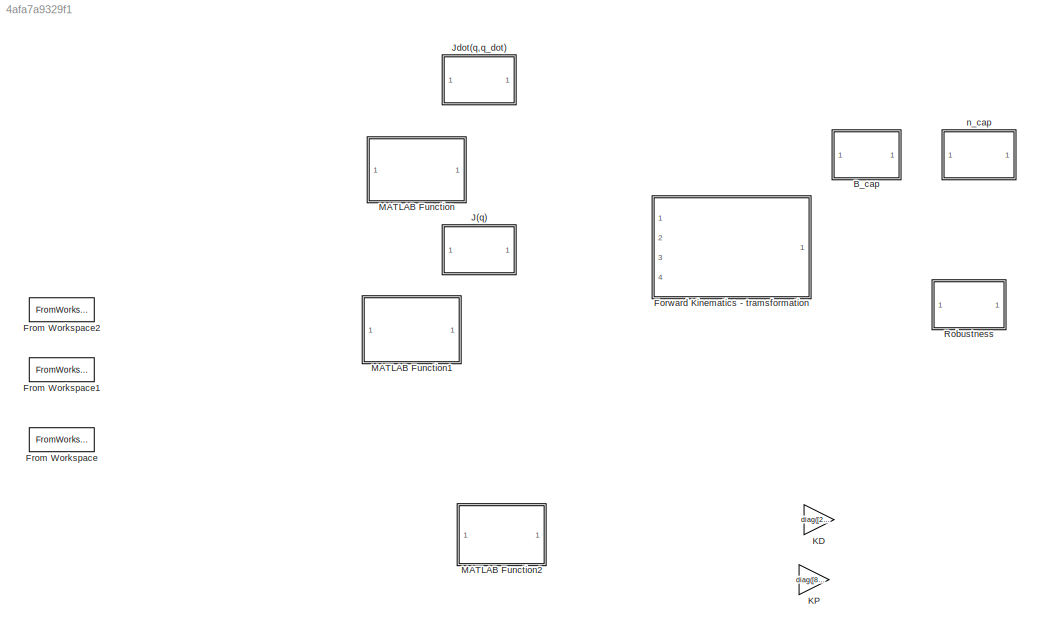
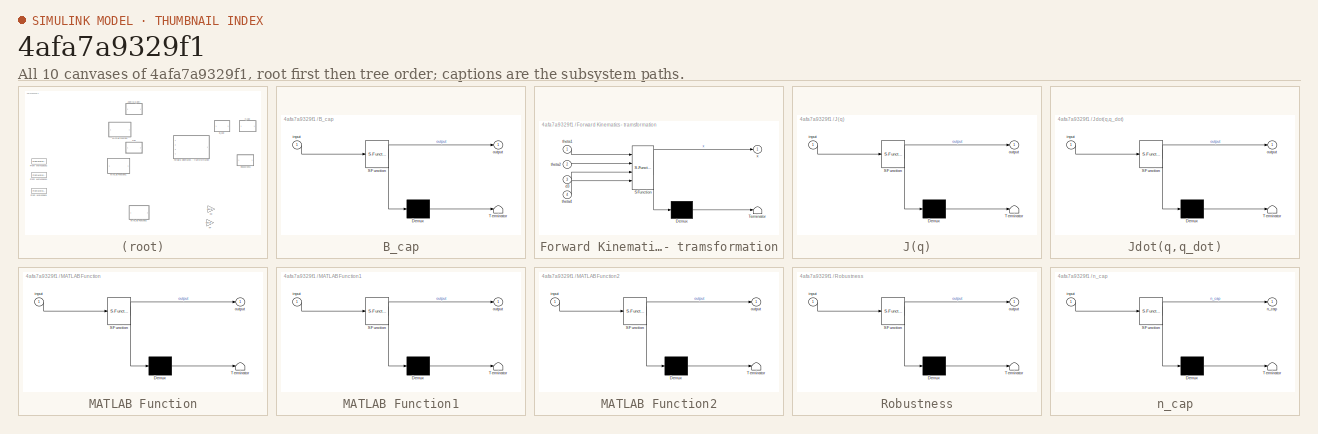
[diagram: thumbnail index - all 10 canvases of the model, root first then tree order]
MODEL slx_4afa7a9329f1
KIND model
CONFIG AbsTol = auto
CONFIG EnableMultiTasking = off
CONFIG FixedStep = auto
CONFIG MaxStep = auto
CONFIG MinStep = auto
CONFIG RelTol = 1e-3
CONFIG SampleTimeConstraint = Unconstrained
CONFIG Solver = VariableStepAuto
CONFIG SolverName = VariableStepAuto
CONFIG StartTime = 0.0
CONFIG StopTime = 10.0
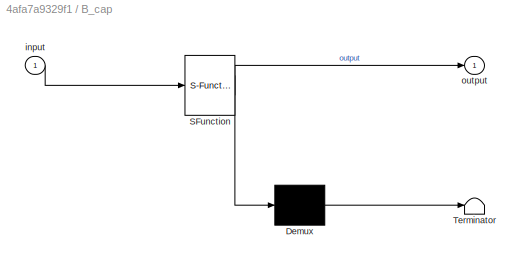
BLOCK [SubSystem] B_cap
  ErrorFcn = Stateflow.Translate.translate
  PermitHierarchicalResolution = ExplicitOnly
  Ports = [1, 1]
  RequestExecContextInheritance = off
  SFBlockType = MATLAB Function
  TreatAsAtomicUnit = on
BLOCK [Demux] B_cap/ Demux 
  Outputs = 1
  Ports = [1, 1]
BLOCK [S-Function] B_cap/ SFunction 
  EnableBusSupport = on
  FunctionName = sf_sfun
  PortCounts = [1 2]
  Ports = [1, 2]
  SFcnIsStateOwnerBlock = off
  SFunctionDeploymentMode = off
  Tag = Stateflow S-Function 7
BLOCK [Terminator] B_cap/ Terminator 
BLOCK [Inport] B_cap/input
  IconDisplay = Port number
BLOCK [Outport] B_cap/output
  IconDisplay = Port number
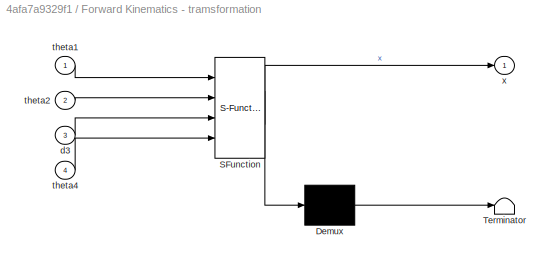
BLOCK [SubSystem] Forward Kinematics - tramsformation
  ErrorFcn = Stateflow.Translate.translate
  PermitHierarchicalResolution = ExplicitOnly
  Ports = [4, 1]
  RequestExecContextInheritance = off
  SFBlockType = MATLAB Function
  TreatAsAtomicUnit = on
BLOCK [Demux] Forward Kinematics - tramsformation/ Demux 
  Outputs = 1
  Ports = [1, 1]
BLOCK [S-Function] Forward Kinematics - tramsformation/ SFunction 
  EnableBusSupport = on
  FunctionName = sf_sfun
  PortCounts = [4 2]
  Ports = [4, 2]
  SFcnIsStateOwnerBlock = off
  SFunctionDeploymentMode = off
  Tag = Stateflow S-Function 2
BLOCK [Terminator] Forward Kinematics - tramsformation/ Terminator 
BLOCK [Inport] Forward Kinematics - tramsformation/d3
  IconDisplay = Port number
  Port = 3
BLOCK [Inport] Forward Kinematics - tramsformation/theta1
  IconDisplay = Port number
BLOCK [Inport] Forward Kinematics - tramsformation/theta2
  IconDisplay = Port number
  Port = 2
BLOCK [Inport] Forward Kinematics - tramsformation/theta4
  IconDisplay = Port number
  Port = 4
BLOCK [Outport] Forward Kinematics - tramsformation/x
  IconDisplay = Port number
BLOCK [FromWorkspace] From Workspace
  SampleTime = Tc
  VariableName = [t pd theta_d]
  ZeroCross = on
BLOCK [FromWorkspace] From Workspace1
  SampleTime = Tc
  VariableName = [t pd_dot theta_d_dot]
  ZeroCross = on
BLOCK [FromWorkspace] From Workspace2
  SampleTime = Tc
  VariableName = [t pd_dot_dot theta_d_dot_dot]
  ZeroCross = on
BLOCK [SubSystem] J(q)
  ErrorFcn = Stateflow.Translate.translate
  PermitHierarchicalResolution = ExplicitOnly
  Ports = [1, 1]
  RequestExecContextInheritance = off
  SFBlockType = MATLAB Function
  TreatAsAtomicUnit = on
BLOCK [Demux] J(q)/ Demux 
  Outputs = 1
  Ports = [1, 1]
BLOCK [S-Function] J(q)/ SFunction 
  EnableBusSupport = off
  FunctionName = sf_sfun
  PortCounts = [1 2]
  Ports = [1, 2]
  SFcnIsStateOwnerBlock = off
  SFunctionDeploymentMode = off
  Tag = Stateflow S-Function 5
BLOCK [Terminator] J(q)/ Terminator 
BLOCK [Inport] J(q)/input
  IconDisplay = Port number
BLOCK [Outport] J(q)/output
  IconDisplay = Port number
BLOCK [SubSystem] Jdot(q,q_dot)
  ErrorFcn = Stateflow.Translate.translate
  PermitHierarchicalResolution = ExplicitOnly
  Ports = [1, 1]
  RequestExecContextInheritance = off
  SFBlockType = MATLAB Function
  TreatAsAtomicUnit = on
BLOCK [Demux] Jdot(q,q_dot)/ Demux 
  Outputs = 1
  Ports = [1, 1]
BLOCK [S-Function] Jdot(q,q_dot)/ SFunction 
  EnableBusSupport = off
  FunctionName = sf_sfun
  PortCounts = [1 2]
  Ports = [1, 2]
  SFcnIsStateOwnerBlock = off
  SFunctionDeploymentMode = off
  Tag = Stateflow S-Function 4
BLOCK [Terminator] Jdot(q,q_dot)/ Terminator 
BLOCK [Inport] Jdot(q,q_dot)/input
  IconDisplay = Port number
BLOCK [Outport] Jdot(q,q_dot)/output
  IconDisplay = Port number
BLOCK [Gain] KD
  Gain = diag([250 250 1000 1000])
  Multiplication = Matrix(K*u) (u vector)
  OutDataTypeStr = Inherit: Inherit via internal rule
  ParamDataTypeStr = Inherit: Inherit via internal rule
  SaturateOnIntegerOverflow = off
BLOCK [Gain] KP
  Gain = diag([8000 8000 80000 80000])
  Multiplication = Matrix(K*u) (u vector)
  OutDataTypeStr = Inherit: Inherit via internal rule
  ParamDataTypeStr = Inherit: Inherit via internal rule
  SaturateOnIntegerOverflow = off
BLOCK [SubSystem] MATLAB Function
  ErrorFcn = Stateflow.Translate.translate
  PermitHierarchicalResolution = ExplicitOnly
  Ports = [1, 1]
  RequestExecContextInheritance = off
  SFBlockType = MATLAB Function
  TreatAsAtomicUnit = on
BLOCK [Demux] MATLAB Function/ Demux 
  Outputs = 1
  Ports = [1, 1]
BLOCK [S-Function] MATLAB Function/ SFunction 
  EnableBusSupport = on
  FunctionName = sf_sfun
  PortCounts = [1 2]
  Ports = [1, 2]
  SFcnIsStateOwnerBlock = off
  SFunctionDeploymentMode = off
  Tag = Stateflow S-Function 1
BLOCK [Terminator] MATLAB Function/ Terminator 
BLOCK [Inport] MATLAB Function/input
  IconDisplay = Port number
BLOCK [Outport] MATLAB Function/output
  IconDisplay = Port number
BLOCK [SubSystem] MATLAB Function1
  ErrorFcn = Stateflow.Translate.translate
  PermitHierarchicalResolution = ExplicitOnly
  Ports = [1, 1]
  RequestExecContextInheritance = off
  SFBlockType = MATLAB Function
  TreatAsAtomicUnit = on
BLOCK [Demux] MATLAB Function1/ Demux 
  Outputs = 1
  Ports = [1, 1]
BLOCK [S-Function] MATLAB Function1/ SFunction 
  EnableBusSupport = on
  FunctionName = sf_sfun
  PortCounts = [1 2]
  Ports = [1, 2]
  SFcnIsStateOwnerBlock = off
  SFunctionDeploymentMode = off
  Tag = Stateflow S-Function 3
BLOCK [Terminator] MATLAB Function1/ Terminator 
BLOCK [Inport] MATLAB Function1/input
  IconDisplay = Port number
BLOCK [Outport] MATLAB Function1/output
  IconDisplay = Port number
BLOCK [SubSystem] MATLAB Function2
  ErrorFcn = Stateflow.Translate.translate
  PermitHierarchicalResolution = ExplicitOnly
  Ports = [1, 1]
  RequestExecContextInheritance = off
  SFBlockType = MATLAB Function
  TreatAsAtomicUnit = on
BLOCK [Demux] MATLAB Function2/ Demux 
  Outputs = 1
  Ports = [1, 1]
BLOCK [S-Function] MATLAB Function2/ SFunction 
  EnableBusSupport = off
  FunctionName = sf_sfun
  PortCounts = [1 2]
  Ports = [1, 2]
  SFcnIsStateOwnerBlock = off
  SFunctionDeploymentMode = off
  Tag = Stateflow S-Function 6
BLOCK [Terminator] MATLAB Function2/ Terminator 
BLOCK [Inport] MATLAB Function2/input
  IconDisplay = Port number
BLOCK [Outport] MATLAB Function2/output
  IconDisplay = Port number
BLOCK [SubSystem] Robustness
  ErrorFcn = Stateflow.Translate.translate
  PermitHierarchicalResolution = ExplicitOnly
  Ports = [1, 1]
  RequestExecContextInheritance = off
  SFBlockType = MATLAB Function
  TreatAsAtomicUnit = on
BLOCK [Demux] Robustness/ Demux 
  Outputs = 1
  Ports = [1, 1]
BLOCK [S-Function] Robustness/ SFunction 
  EnableBusSupport = on
  FunctionName = sf_sfun
  PortCounts = [1 2]
  Ports = [1, 2]
  SFcnIsStateOwnerBlock = off
  SFunctionDeploymentMode = off
  Tag = Stateflow S-Function 8
BLOCK [Terminator] Robustness/ Terminator 
BLOCK [Inport] Robustness/input
  IconDisplay = Port number
BLOCK [Outport] Robustness/output
  IconDisplay = Port number
BLOCK [SubSystem] n_cap
  ErrorFcn = Stateflow.Translate.translate
  PermitHierarchicalResolution = ExplicitOnly
  Ports = [1, 1]
  RequestExecContextInheritance = off
  SFBlockType = MATLAB Function
  TreatAsAtomicUnit = on
BLOCK [Demux] n_cap/ Demux 
  Outputs = 1
  Ports = [1, 1]
BLOCK [S-Function] n_cap/ SFunction 
  EnableBusSupport = on
  FunctionName = sf_sfun
  PortCounts = [1 2]
  Ports = [1, 2]
  SFcnIsStateOwnerBlock = off
  SFunctionDeploymentMode = off
  Tag = Stateflow S-Function 9
BLOCK [Terminator] n_cap/ Terminator 
BLOCK [Inport] n_cap/input
  IconDisplay = Port number
BLOCK [Outport] n_cap/n_cap
  IconDisplay = Port number
CHART MATLAB Function states=1 transitions=1
  STATE_LABEL 'eML_blk_kernel()'
  STATE_LABEL 'SCRIPT:\nfunction output=Jacobian_inverse(input)\n%INPUT is (theta1, theta2, d3, theta4,xd_dot_plus_Ke) \ntheta1=input(5,:); d1=0; a1=0.5; alpha1=0; %parameter link1\ntheta2=input(6,:); d2=0; a2=0.5; alpha2=0; %parameter link2\ntheta3=0; d3=input(7,:); a3=0; alpha3=0;  %parameter link3\ntheta4=input(8,:); d4=0; a4=0; alpha4=0;  %parameter link4\n T01=DHmatrix(theta1,d1,a1,alpha1);\n T12=DHmatrix(theta2,d2...<+668ch>'
CHART Forward Kinematics - tramsformation states=1 transitions=1
  STATE_LABEL 'eML_blk_kernel()'
  STATE_LABEL 'SCRIPT:\nfunction x = forward_kinematics(theta1,theta2,d3,theta4)\n     d1=0; a1=0.5; alpha1=0; %parameter link1\n     d2=0; a2=0.5; alpha2=0; %parameter link2\ntheta3=0;  a3=0; alpha3=0;  %parforwardameter link3\n     d4=0; a4=0; alpha4=0;  %parameter link4\n T01=DHmatrix(theta1,d1,a1,alpha1);\n T12=DHmatrix(theta2,d2,a2,alpha2);\n T23=DHmatrix(theta3,d3,a3,alpha3);\n T34=DHmatrix(theta4,d4,a4,alpha4);\n T...<+407ch>'
CHART MATLAB Function1 states=1 transitions=1
  STATE_LABEL 'eML_blk_kernel()'
  STATE_LABEL 'SCRIPT:\nfunction output=Jacobian_tranpose(input)\n%INPUT is (theta1, theta2, d3, theta4,xd_dot_plus_Ke) \ntheta1=input(5,:); d1=0; a1=0.5; alpha1=0; %parameter link1\ntheta2=input(6,:); d2=0; a2=0.5; alpha2=0; %parameter link2\ntheta3=0; d3=input(7,:); a3=0; alpha3=0;  %parameter link3\ntheta4=input(8,:); d4=0; a4=0; alpha4=0;  %parameter link4\n T01=DHmatrix(theta1,d1,a1,alpha1);\n T12=DHmatrix(theta2,d...<+664ch>'
CHART Jdot(q,q_dot) states=1 transitions=1
  STATE_LABEL 'eML_blk_kernel()'
  STATE_LABEL 'SCRIPT:\nfunction output = Jacobian_dot(input)\n% Part 1 Jacobian Differential: J(q)_dot\n    theta1 = input(5,:);\n    theta2 = input(6,:);\n    theta1_dot = input(1,:);\n    theta2_dot = input(2,:);\n    Jv = [-0.5*(sin(theta1)+sin(theta1+theta2)) -0.5*sin(theta1+theta2) 0 0;\n          0.5*(cos(theta1)+cos(theta1+theta2)) 0.5*cos(theta1+theta2) 0 0;\n          0 0 -1 0;\n          1 1 0 1;];\n     Jd = [-...<+348ch>'
CHART J(q) states=1 transitions=1
  STATE_LABEL 'eML_blk_kernel()'
  STATE_LABEL 'SCRIPT:\nfunction output = Jacobian(input)\n% Part 1 Jacobian: J(q)\n    theta1 = input(5,:);\n    theta2 = input(6,:);\n    Jv = [-0.5*(sin(theta1)+sin(theta1+theta2)) -0.5*sin(theta1+theta2) 0 0; 0.5*(cos(theta1)+cos(theta1+theta2)) 0.5*cos(theta1+theta2) 0 0; 0 0 -1 0; 1 1 0 1;];\n    q_dot = [input(1,:); input(2,:); input(3,:); input(4,:)];\n    output = Jv*q_dot;\nend\n'
CHART MATLAB Function2 states=1 transitions=1
  STATE_LABEL 'eML_blk_kernel()'
  STATE_LABEL 'SCRIPT:\nfunction output=Jacobian_inverse(input)\n%INPUT is (theta1, theta2, d3, theta4,xd_dot_plus_Ke) \ntheta1=input(5,:); d1=0; a1=0.5; alpha1=0; %parameter link1\ntheta2=input(6,:); d2=0; a2=0.5; alpha2=0; %parameter link2\ntheta3=0; d3=input(7,:); a3=0; alpha3=0;  %parameter link3\ntheta4=input(8,:); d4=0; a4=0; alpha4=0;  %parameter link4\n    Jv = [-0.5*(sin(theta1)+sin(theta1+theta2)) -0.5*sin(th...<+173ch>'
CHART B_cap states=1 transitions=1
  STATE_LABEL 'eML_blk_kernel()'
  STATE_LABEL 'SCRIPT:\nfunction output  = B_cap(input)\n    theta2=input(2,:);\n    y1=input(5,:);\n    y2=input(6,:);\n    y3=input(7,:);    \n    y4=input(8,:);\n    m_l1 = 25;\n    m_l2 = 25;\n    m_l3 = 10;\n    m_l4 = 0;\n    I_l1 = 5;\n    I_l2 = 5;\n    I_l4 = 1;\n    I_m1 = 0.0001;\n    I_m2 = 0.0001;\n    I_m3 = 0.01;\n    I_m4 = 0.005;\n    l_1 = 0.25;\n    l_2 = 0.25;\n    k_r1 = 1;\n    k_r2 = 1;\n    k_r3 = 50;\n    k_r4...<+679ch>'
CHART Robustness states=1 transitions=1
  STATE_LABEL 'eML_blk_kernel()'
  STATE_LABEL "SCRIPT:\nfunction output  = Robustness(input)\n%ROBUSTENESS Summary of this function goes here\n%   Detailed explanation goes here\ne_1=input(1);\ne_2=input(2);\ne_3=input(3);\ne_4=input(4);\ne_1_dot=input(5);\ne_2_dot=input(6);\ne_3_dot=input(7);\ne_4_dot=input(8);\nD=[zeros(4,4) eye(4)]';\nQ=eye(8);\nzita=[e_1 e_2 e_3 e_4 e_1_dot e_2_dot e_3_dot e_4_dot]';\nz=D'*Q*zita;\nn_z=norm(z,2);\nepsilon=0.06;\nro=70;\nif n...<+66ch>"
CHART n_cap states=1 transitions=1
  STATE_LABEL 'eML_blk_kernel()'
  STATE_LABEL 'SCRIPT:\nfunction n_cap  = n_cap(input)\n    theta2=input(2,:);\n    theta1_dot=input(5,:);\n    theta2_dot=input(6,:);\n    d3_dot=input(7,:);\n    theta4_dot=input(8,:);\n    m_l2 = 25;\n    m_l3 = 10;\n    m_l4 = 0;\n    l_2 = 0.25;\n    k_r1 = 1;\n    k_r2 = 1;\n    k_r3 = 50;\n    k_r4 = 20;\n    g = 9.8;\n    Fv_1 = 0.0001;\n    Fv_2 = 0.0001;\n    Fv_3 = 0.01;\n    Fv_4 = 0.005;\n    C_cap=[(-l_2*m_l2*sin(thet...<+438ch>'
